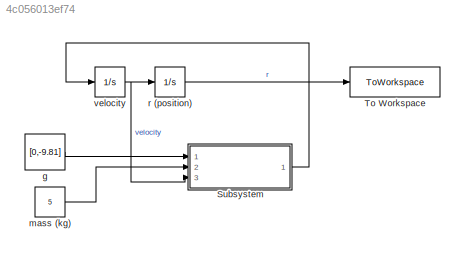
MODEL slx_4c056013ef74
KIND model
CONFIG AbsTol = auto
CONFIG EnableMultiTasking = off
CONFIG FixedStep = auto
CONFIG MaxStep = auto
CONFIG MinStep = auto
CONFIG RelTol = 1e-3
CONFIG SampleTimeConstraint = Unconstrained
CONFIG SolverName = VariableStepAuto
CONFIG StartTime = 0.0
CONFIG StopTime = 25
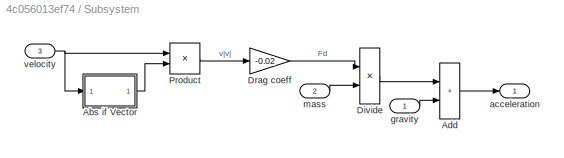
BLOCK [SubSystem] Subsystem
  Ports = [3, 1]
  RequestExecContextInheritance = off
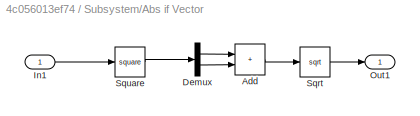
BLOCK [SubSystem] Subsystem/Abs if Vector
  Ports = [1, 1]
  RequestExecContextInheritance = off
BLOCK [Sum] Subsystem/Abs if Vector/Add
  IconShape = rectangular
  Ports = [2, 1]
BLOCK [Demux] Subsystem/Abs if Vector/Demux
  Outputs = 2
  Ports = [1, 2]
BLOCK [Inport] Subsystem/Abs if Vector/In1
BLOCK [Outport] Subsystem/Abs if Vector/Out1
BLOCK [Sqrt] Subsystem/Abs if Vector/Sqrt
BLOCK [Math] Subsystem/Abs if Vector/Square
  Operator = square
  Ports = [1, 1]
BLOCK [Sum] Subsystem/Add
  IconShape = rectangular
  Ports = [2, 1]
BLOCK [Product] Subsystem/Divide
  Inputs = */
  Ports = [2, 1]
BLOCK [Gain] Subsystem/Drag coeff
  Gain = -0.02
BLOCK [Product] Subsystem/Product
  Ports = [2, 1]
BLOCK [Outport] Subsystem/acceleration
BLOCK [Inport] Subsystem/gravity
BLOCK [Inport] Subsystem/mass
  Port = 2
BLOCK [Inport] Subsystem/velocity
  Port = 3
BLOCK [ToWorkspace] To Workspace
  FixptAsFi = on
  MaxDataPoints = inf
  Ports = [1]
  SampleTime = -1
  VariableName = simout
BLOCK [Constant] g
  Value = [0,-9.81]
BLOCK [Constant] mass (kg)
  Value = 5
BLOCK [Integrator] r (position)
  InitialCondition = [0 0]
  Ports = [1, 1]
BLOCK [Integrator] velocity
  InitialCondition = 100*[cosd(theta) sind(theta)]
  Ports = [1, 1]
LINE Subsystem/Abs if Vector/Add:1 -> Subsystem/Abs if Vector/Sqrt:1
LINE Subsystem/Abs if Vector/Demux:1 -> Subsystem/Abs if Vector/Add:1
LINE Subsystem/Abs if Vector/Demux:2 -> Subsystem/Abs if Vector/Add:2
LINE Subsystem/Abs if Vector/In1:1 -> Subsystem/Abs if Vector/Square:1
LINE Subsystem/Abs if Vector/Sqrt:1 -> Subsystem/Abs if Vector/Out1:1
LINE Subsystem/Abs if Vector/Square:1 -> Subsystem/Abs if Vector/Demux:1
LINE Subsystem/Abs if Vector:1 -> Subsystem/Product:2
LINE Subsystem/Add:1 -> Subsystem/acceleration:1
LINE Subsystem/Divide:1 -> Subsystem/Add:1
LINE Subsystem/Drag coeff:1 -> Subsystem/Divide:1
LINE Subsystem/Product:1 -> Subsystem/Drag coeff:1
LINE Subsystem/gravity:1 -> Subsystem/Add:2
LINE Subsystem/mass:1 -> Subsystem/Divide:2
NET Subsystem/velocity:1 -> Subsystem/Abs if Vector:1, Subsystem/Product:1
LINE Subsystem:1 -> velocity:1
LINE g:1 -> Subsystem:1
LINE mass (kg):1 -> Subsystem:2
LINE r (position):1 -> To Workspace:1
NET velocity:1 -> Subsystem:3, r (position):1
note: NET lines group one-source signal fan-out (src -> all destinations, sorted); 1:1 wires keep LINE
